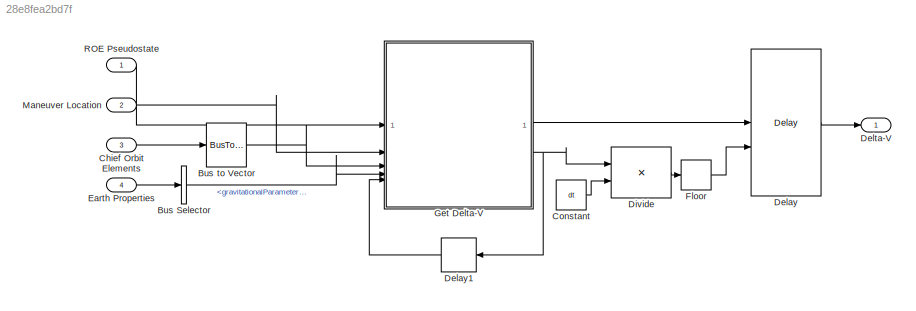
MODEL slx_28e8fea2bd7f
KIND model
CONFIG AbsTol = auto
CONFIG EnableMultiTasking = off
CONFIG FixedStep = dt
CONFIG MaxStep = auto
CONFIG MinStep = auto
CONFIG RelTol = 1e-3
CONFIG SampleTimeConstraint = Unconstrained
CONFIG SolverName = ode4
CONFIG StartTime = 0.0
CONFIG StopTime = 10.0
BLOCK [BusSelector] Bus Selector
  OutputSignals = gravitationalParameter_m3_s2
BLOCK [BusToVector] Bus to Vector
BLOCK [Inport] Chief Orbit Elements
  OutDataTypeStr = Bus: osculatingOrbitElements
  Port = 3
BLOCK [Constant] Constant
  Value = dt
BLOCK [Delay] Delay
  DelayLengthSource = Input port
  InputPortMap = u0,p1
BLOCK [Delay] Delay1
  DelayLength = 1
  InputPortMap = u0
BLOCK [Outport] Delta-V
BLOCK [Product] Divide
  Inputs = */
BLOCK [Inport] Earth Properties
  OutDataTypeStr = Bus: earthProperties
  Port = 4
BLOCK [Rounding] Floor
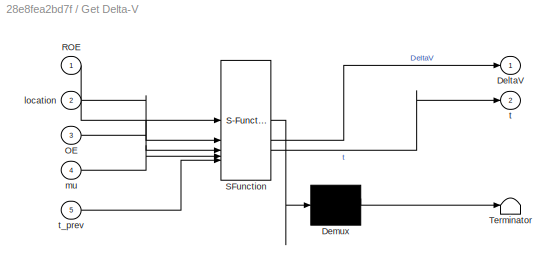
BLOCK [SubSystem] Get Delta-V
  ErrorFcn = Stateflow.Translate.translate
  LibrarySourceBlock = simulink/User-Defined\nFunctions/MATLAB Function
  PermitHierarchicalResolution = ExplicitOnly
  SFBlockType = MATLAB Function
  TreatAsAtomicUnit = on
BLOCK [Demux] Get Delta-V/ Demux 
  Outputs = 1
BLOCK [S-Function] Get Delta-V/ SFunction 
  EnableBusSupport = on
  FunctionName = sf_sfun
  PortCounts = [5 3]
  SFcnIsStateOwnerBlock = off
  SFunctionDeploymentMode = off
  Tag = Stateflow S-Function 2
BLOCK [Terminator] Get Delta-V/ Terminator 
BLOCK [Outport] Get Delta-V/DeltaV
BLOCK [Inport] Get Delta-V/OE
  Port = 3
BLOCK [Inport] Get Delta-V/ROE
BLOCK [Inport] Get Delta-V/location
  Port = 2
BLOCK [Inport] Get Delta-V/mu
  Port = 4
BLOCK [Outport] Get Delta-V/t
  Port = 2
BLOCK [Inport] Get Delta-V/t_prev
  Port = 5
BLOCK [Inport] Maneuver Location
  Port = 2
  PortDimensions = 50
BLOCK [Inport] ROE Pseudostate
  PortDimensions = 6
LINE Bus Selector:1 -> Get Delta-V:4
LINE Bus to Vector:1 -> Get Delta-V:3
LINE Chief Orbit Elements:1 -> Bus to Vector:1
LINE Constant:1 -> Divide:2
LINE Delay1:1 -> Get Delta-V:5
LINE Delay:1 -> Delta-V:1
LINE Divide:1 -> Floor:1
LINE Earth Properties:1 -> Bus Selector:1
LINE Floor:1 -> Delay:2
LINE Get Delta-V:1 -> Delay:1
NET Get Delta-V:2 -> Delay1:1, Divide:1
LINE Maneuver Location:1 -> Get Delta-V:2
LINE ROE Pseudostate:1 -> Get Delta-V:1
note: NET lines group one-source signal fan-out (src -> all destinations, sorted); 1:1 wires keep LINE
CHART Get Delta-V states=1 transitions=1
  STATE_LABEL 'eML_blk_kernel()'
  STATE_LABEL 'SCRIPT:\nfunction [DeltaV,t] = getDeltaV(ROE,location,OE,mu,t_prev)\n[DeltaV,t] = getDeltaV(ROE,location,OE,mu,t_prev);\nend\n'
CHART  states=0 transitions=0
